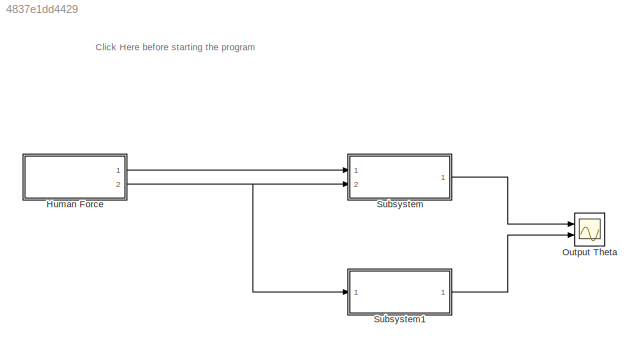
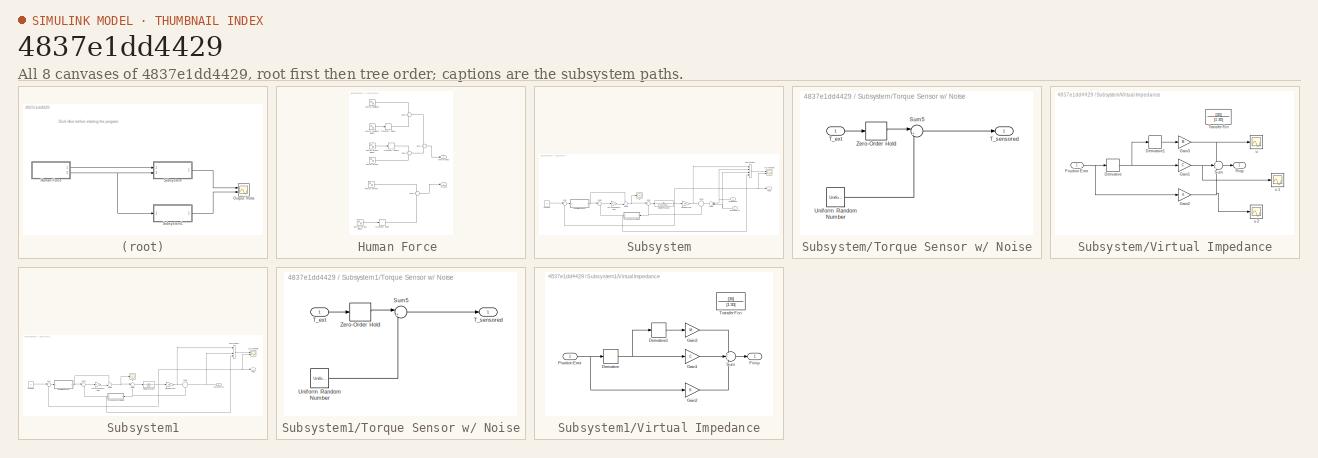
[diagram: thumbnail index - all 8 canvases of the model, root first then tree order]
MODEL slx_4837e1dd4429
KIND model
CONFIG AbsTol = auto
CONFIG EnableMultiTasking = on
CONFIG FixedStep = auto
CONFIG MaxStep = auto
CONFIG MinStep = auto
CONFIG RelTol = 1e-3
CONFIG SampleTimeConstraint = Unconstrained
CONFIG Solver = VariableStepAuto
CONFIG SolverName = VariableStepAuto
CONFIG StartTime = 0.0
CONFIG StopTime = 30
BLOCK [SubSystem] Human Force 
  Ports = [0, 2]
  RequestExecContextInheritance = off
  Variant = off
BLOCK [Outport] Human Force /Human Body
  IconDisplay = Port number
BLOCK [Sin] Human Force /Human Gravity
  Amplitude = 2
  Frequency = 2*pi*0.13
  Phase = -30*pi/180
  Ports = [0, 1]
BLOCK [Sin] Human Force /Human Gravity Reject
  Amplitude = -2
  Frequency = 2*pi*0.13
  Phase = -30*pi/180
  Ports = [0, 1]
BLOCK [Sin] Human Force /Human Nonlinear
  Amplitude = 2.1
  Frequency = 2*pi*1.2
  Ports = [0, 1]
BLOCK [Sin] Human Force /Human Nonlinear Reject
  Amplitude = -2.1
  Frequency = 2*pi*1.2
  Ports = [0, 1]
BLOCK [Sin] Human Force /Human Torque
  Amplitude = 10
  Frequency = 2*JJ*pi
  Ports = [0, 1]
BLOCK [Sin] Human Force /Human Torque Reject
  Amplitude = -10
  Frequency = JJ*2*pi
  Ports = [0, 1]
BLOCK [Outport] Human Force /Muscle
  IconDisplay = Port number
  Port = 2
BLOCK [Sum] Human Force /Sum1
  IconShape = round
  InputSameDT = off
  OutDataTypeStr = Inherit: Inherit via internal rule
  Ports = [2, 1]
  SaturateOnIntegerOverflow = off
BLOCK [Sum] Human Force /Sum2
  IconShape = round
  InputSameDT = off
  OutDataTypeStr = Inherit: Inherit via internal rule
  Ports = [2, 1]
  SaturateOnIntegerOverflow = off
BLOCK [Sum] Human Force /Sum3
  IconShape = round
  InputSameDT = off
  OutDataTypeStr = Inherit: Inherit via internal rule
  Ports = [2, 1]
  SaturateOnIntegerOverflow = off
BLOCK [Sum] Human Force /Sum7
  IconShape = round
  InputSameDT = off
  OutDataTypeStr = Inherit: Inherit via internal rule
  Ports = [2, 1]
  SaturateOnIntegerOverflow = off
BLOCK [TransportDelay] Human Force /Transport Delay
  DelayTime = 3*1/JJ
  Ports = [1, 1]
BLOCK [TransportDelay] Human Force /Transport Delay1
  DelayTime = 19*1/1.2
  Ports = [1, 1]
BLOCK [TransportDelay] Human Force /Transport Delay2
  DelayTime = 12*1/0.13
  Ports = [1, 1]
BLOCK [Scope] Output Theta
  NumInputPorts = 2
  Ports = [2]
  ScopeSpecificationString = Simulink.scopes.TimeScopeBlockCfg('CurrentConfiguration', extmgr.ConfigurationSet(extmgr.Configuration('Core','General UI',true,'FigureColor',[1 1 1]),extmgr.Configuration('Core','Source UI',true),extmgr.Configuration('Sources','WiredSimulink',true,'SampleTime','dt'),extmgr.Configuration('Visuals','Time Domain',true,'SerializedDisplays',{struct('MinYLimReal','-0.14938','MaxYLimReal','0.1468','YLab...<+1684ch>
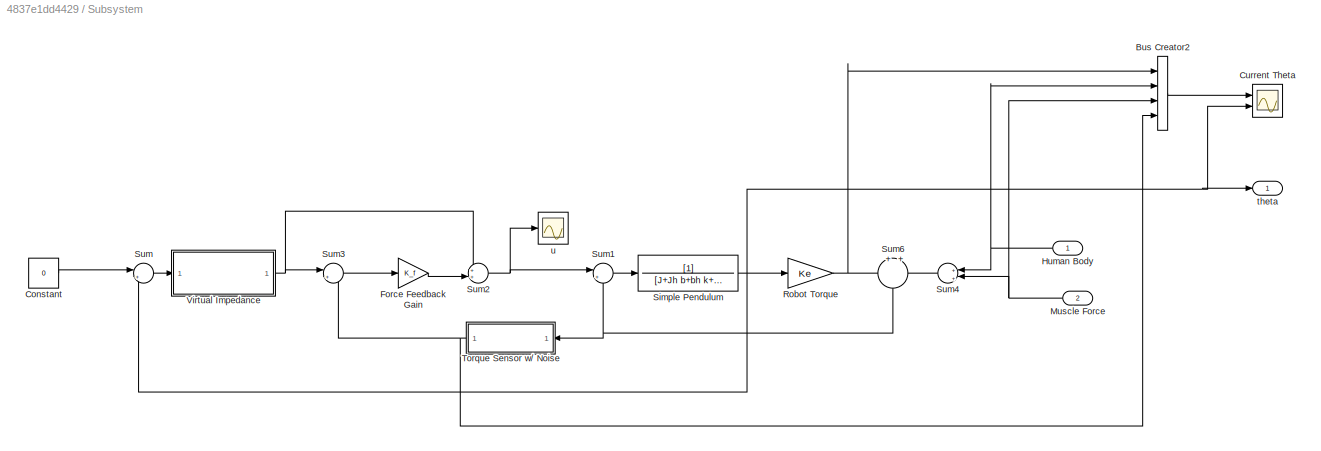
BLOCK [SubSystem] Subsystem
  Ports = [2, 1]
  RequestExecContextInheritance = off
  Variant = off
BLOCK [BusCreator] Subsystem/Bus Creator2
  DisplayOption = bar
  InheritFromInputs = on
  Inputs = 4
  Ports = [4, 1]
BLOCK [Constant] Subsystem/Constant
  SampleTime = dt
  Value = 0
BLOCK [Scope] Subsystem/Current Theta
  NumInputPorts = 2
  Ports = [2]
  ScopeSpecificationString = Simulink.scopes.TimeScopeBlockCfg('CurrentConfiguration', extmgr.ConfigurationSet(extmgr.Configuration('Core','General UI',true,'FigureColor',[1 1 1]),extmgr.Configuration('Core','Source UI',true),extmgr.Configuration('Sources','WiredSimulink',true,'SampleTime','dt','DataLoggingVariableName','ScopeData3'),extmgr.Configuration('Visuals','Time Domain',true,'SerializedDisplays',{struct('MinYLimReal',...<+2785ch>
BLOCK [Gain] Subsystem/Force Feedback Gain
  Gain = K_f
  OutDataTypeStr = Inherit: Inherit via internal rule
  ParamDataTypeStr = Inherit: Inherit via internal rule
  SaturateOnIntegerOverflow = off
BLOCK [Inport] Subsystem/Human Body
  IconDisplay = Port number
BLOCK [Inport] Subsystem/Muscle Force
  IconDisplay = Port number
  Port = 2
BLOCK [Gain] Subsystem/Robot Torque
  Gain = Ke
  OutDataTypeStr = Inherit: Inherit via internal rule
  ParamDataTypeStr = Inherit: Inherit via internal rule
  SaturateOnIntegerOverflow = off
BLOCK [TransferFcn] Subsystem/Simple Pendulum
  ContinuousStateAttributes = 'Single_Pendulum'
  Denominator = [J+Jh b+bh k+kh]
BLOCK [Sum] Subsystem/Sum
  IconShape = round
  InputSameDT = off
  Inputs = |+-
  OutDataTypeStr = Inherit: Inherit via internal rule
  Ports = [2, 1]
  SaturateOnIntegerOverflow = off
BLOCK [Sum] Subsystem/Sum1
  IconShape = round
  InputSameDT = off
  Inputs = |++
  OutDataTypeStr = Inherit: Inherit via internal rule
  Ports = [2, 1]
  SaturateOnIntegerOverflow = off
BLOCK [Sum] Subsystem/Sum2
  IconShape = round
  InputSameDT = off
  Inputs = ++|
  OutDataTypeStr = Inherit: Inherit via internal rule
  Ports = [2, 1]
  SaturateOnIntegerOverflow = off
BLOCK [Sum] Subsystem/Sum3
  IconShape = round
  InputSameDT = off
  Inputs = |++
  OutDataTypeStr = Inherit: Inherit via internal rule
  Ports = [2, 1]
  SaturateOnIntegerOverflow = off
BLOCK [Sum] Subsystem/Sum4
  IconShape = round
  InputSameDT = off
  Inputs = +|+
  OutDataTypeStr = Inherit: Inherit via internal rule
  Ports = [2, 1]
  SaturateOnIntegerOverflow = off
BLOCK [Sum] Subsystem/Sum6
  IconShape = round
  InputSameDT = off
  Inputs = +|+
  OutDataTypeStr = Inherit: Inherit via internal rule
  Ports = [2, 1]
  SaturateOnIntegerOverflow = off
BLOCK [SubSystem] Subsystem/Torque Sensor w// Noise
  Ports = [1, 1]
  RequestExecContextInheritance = off
  Variant = off
BLOCK [Sum] Subsystem/Torque Sensor w// Noise/Sum5
  IconShape = round
  InputSameDT = off
  Inputs = |++
  OutDataTypeStr = Inherit: Inherit via internal rule
  Ports = [2, 1]
  SaturateOnIntegerOverflow = off
BLOCK [Inport] Subsystem/Torque Sensor w// Noise/T_ext
  IconDisplay = Port number
BLOCK [Outport] Subsystem/Torque Sensor w// Noise/T_sensored
  IconDisplay = Port number
BLOCK [UniformRandomNumber] Subsystem/Torque Sensor w// Noise/Uniform Random Number
  Maximum = 0.5
  Minimum = -0.5
  SampleTime = 0.005
BLOCK [ZeroOrderHold] Subsystem/Torque Sensor w// Noise/Zero-Order Hold
  SampleTime = dt
BLOCK [SubSystem] Subsystem/Virtual Impedance
  Ports = [1, 1]
  RequestExecContextInheritance = off
  Variant = off
BLOCK [Derivative] Subsystem/Virtual Impedance/Derivative
BLOCK [Derivative] Subsystem/Virtual Impedance/Derivative1
BLOCK [Outport] Subsystem/Virtual Impedance/Fimp
  IconDisplay = Port number
BLOCK [Gain] Subsystem/Virtual Impedance/Gain1
  Gain = C
  OutDataTypeStr = Inherit: Inherit via internal rule
  ParamDataTypeStr = Inherit: Inherit via internal rule
  SaturateOnIntegerOverflow = off
BLOCK [Gain] Subsystem/Virtual Impedance/Gain2
  Gain = K
  OutDataTypeStr = Inherit: Inherit via internal rule
  ParamDataTypeStr = Inherit: Inherit via internal rule
  SaturateOnIntegerOverflow = off
BLOCK [Gain] Subsystem/Virtual Impedance/Gain3
  Gain = M
  OutDataTypeStr = Inherit: Inherit via internal rule
  ParamDataTypeStr = Inherit: Inherit via internal rule
  SaturateOnIntegerOverflow = off
BLOCK [Inport] Subsystem/Virtual Impedance/Position Error
  IconDisplay = Port number
BLOCK [Sum] Subsystem/Virtual Impedance/Sum
  IconShape = round
  InputSameDT = off
  Inputs = +++
  OutDataTypeStr = Inherit: Inherit via internal rule
  Ports = [3, 1]
  SaturateOnIntegerOverflow = off
BLOCK [TransferFcn] Subsystem/Virtual Impedance/Transfer Fcn
  Denominator = [1 30]
  Numerator = [30]
BLOCK [Scope] Subsystem/Virtual Impedance/u 
  NumInputPorts = 1
  Ports = [1]
  ScopeSpecificationString = Simulink.scopes.TimeScopeBlockCfg('CurrentConfiguration', extmgr.ConfigurationSet(extmgr.Configuration('Core','General UI',true,'FigureColor',[1 1 1]),extmgr.Configuration('Core','Source UI',true),extmgr.Configuration('Sources','WiredSimulink',true,'DataLoggingVariableName','ScopeData1'),extmgr.Configuration('Visuals','Time Domain',true,'SerializedDisplays',{struct('MinYLimReal','-1.00000','MaxYLi...<+1511ch>
BLOCK [Scope] Subsystem/Virtual Impedance/u 1
  NumInputPorts = 1
  Ports = [1]
  ScopeSpecificationString = Simulink.scopes.TimeScopeBlockCfg('CurrentConfiguration', extmgr.ConfigurationSet(extmgr.Configuration('Core','General UI',true,'FigureColor',[1 1 1]),extmgr.Configuration('Core','Source UI',true),extmgr.Configuration('Sources','WiredSimulink',true,'DataLoggingVariableName','ScopeData4'),extmgr.Configuration('Visuals','Time Domain',true,'SerializedDisplays',{struct('MinYLimReal','-6.29917','MaxYLi...<+1511ch>
BLOCK [Scope] Subsystem/Virtual Impedance/u 2
  NumInputPorts = 1
  Ports = [1]
  ScopeSpecificationString = Simulink.scopes.TimeScopeBlockCfg('CurrentConfiguration', extmgr.ConfigurationSet(extmgr.Configuration('Core','General UI',true,'FigureColor',[1 1 1]),extmgr.Configuration('Core','Source UI',true),extmgr.Configuration('Sources','WiredSimulink',true,'DataLoggingVariableName','ScopeData5'),extmgr.Configuration('Visuals','Time Domain',true,'SerializedDisplays',{struct('MinYLimReal','-14.44247','MaxYL...<+1517ch>
BLOCK [Outport] Subsystem/theta
  IconDisplay = Port number
BLOCK [Scope] Subsystem/u 
  NumInputPorts = 1
  Ports = [1]
  ScopeSpecificationString = Simulink.scopes.TimeScopeBlockCfg('CurrentConfiguration', extmgr.ConfigurationSet(extmgr.Configuration('Core','General UI',true,'FigureColor',[1 1 1]),extmgr.Configuration('Core','Source UI',true),extmgr.Configuration('Sources','WiredSimulink',true,'DataLoggingVariableName','ScopeData2'),extmgr.Configuration('Visuals','Time Domain',true,'SerializedDisplays',{struct('MinYLimReal','-35.46098','MaxYL...<+1610ch>
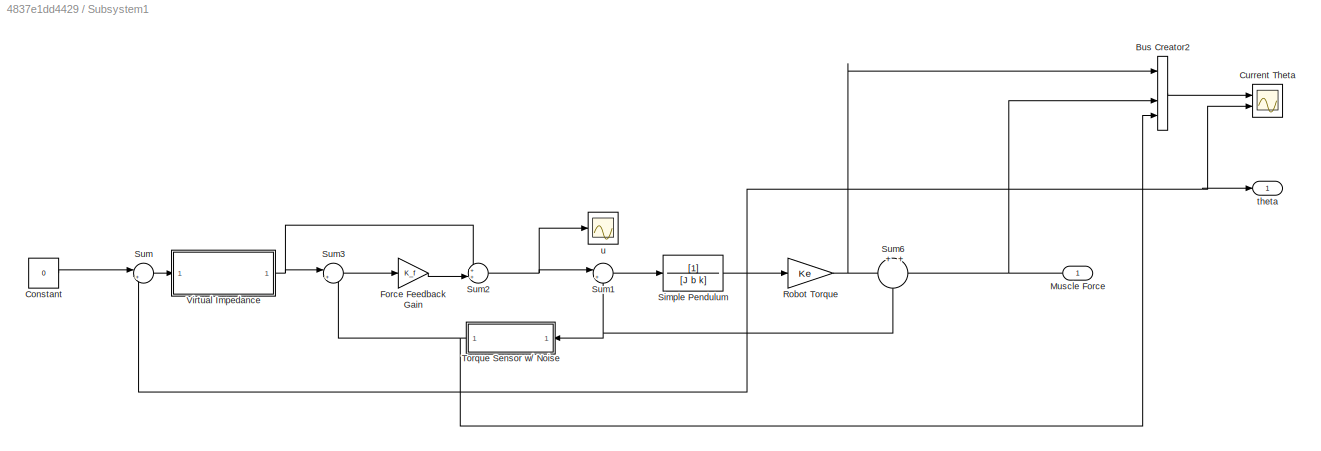
BLOCK [SubSystem] Subsystem1
  Ports = [1, 1]
  RequestExecContextInheritance = off
  Variant = off
BLOCK [BusCreator] Subsystem1/Bus Creator2
  DisplayOption = bar
  InheritFromInputs = on
  Inputs = 4
  Ports = [4, 1]
BLOCK [Constant] Subsystem1/Constant
  SampleTime = dt
  Value = 0
BLOCK [Scope] Subsystem1/Current Theta
  NumInputPorts = 2
  Ports = [2]
  ScopeSpecificationString = Simulink.scopes.TimeScopeBlockCfg('CurrentConfiguration', extmgr.ConfigurationSet(extmgr.Configuration('Core','General UI',true,'FigureColor',[1 1 1]),extmgr.Configuration('Core','Source UI',true),extmgr.Configuration('Sources','WiredSimulink',true,'SampleTime','dt','DataLoggingVariableName','ScopeData3'),extmgr.Configuration('Visuals','Time Domain',true,'SerializedDisplays',{struct('MinYLimReal',...<+2782ch>
BLOCK [Gain] Subsystem1/Force Feedback Gain
  Gain = K_f
  OutDataTypeStr = Inherit: Inherit via internal rule
  ParamDataTypeStr = Inherit: Inherit via internal rule
  SaturateOnIntegerOverflow = off
BLOCK [Inport] Subsystem1/Muscle Force
  IconDisplay = Port number
BLOCK [Gain] Subsystem1/Robot Torque
  Gain = Ke
  OutDataTypeStr = Inherit: Inherit via internal rule
  ParamDataTypeStr = Inherit: Inherit via internal rule
  SaturateOnIntegerOverflow = off
BLOCK [TransferFcn] Subsystem1/Simple Pendulum
  ContinuousStateAttributes = 'Single_Pendulum'
  Denominator = [J b k]
BLOCK [Sum] Subsystem1/Sum
  IconShape = round
  InputSameDT = off
  Inputs = |+-
  OutDataTypeStr = Inherit: Inherit via internal rule
  Ports = [2, 1]
  SaturateOnIntegerOverflow = off
BLOCK [Sum] Subsystem1/Sum1
  IconShape = round
  InputSameDT = off
  Inputs = |++
  OutDataTypeStr = Inherit: Inherit via internal rule
  Ports = [2, 1]
  SaturateOnIntegerOverflow = off
BLOCK [Sum] Subsystem1/Sum2
  IconShape = round
  InputSameDT = off
  Inputs = ++|
  OutDataTypeStr = Inherit: Inherit via internal rule
  Ports = [2, 1]
  SaturateOnIntegerOverflow = off
BLOCK [Sum] Subsystem1/Sum3
  IconShape = round
  InputSameDT = off
  Inputs = |++
  OutDataTypeStr = Inherit: Inherit via internal rule
  Ports = [2, 1]
  SaturateOnIntegerOverflow = off
BLOCK [Sum] Subsystem1/Sum6
  IconShape = round
  InputSameDT = off
  Inputs = +|+
  OutDataTypeStr = Inherit: Inherit via internal rule
  Ports = [2, 1]
  SaturateOnIntegerOverflow = off
BLOCK [SubSystem] Subsystem1/Torque Sensor w// Noise
  Ports = [1, 1]
  RequestExecContextInheritance = off
  Variant = off
BLOCK [Sum] Subsystem1/Torque Sensor w// Noise/Sum5
  IconShape = round
  InputSameDT = off
  Inputs = |++
  OutDataTypeStr = Inherit: Inherit via internal rule
  Ports = [2, 1]
  SaturateOnIntegerOverflow = off
BLOCK [Inport] Subsystem1/Torque Sensor w// Noise/T_ext
  IconDisplay = Port number
BLOCK [Outport] Subsystem1/Torque Sensor w// Noise/T_sensored
  IconDisplay = Port number
BLOCK [UniformRandomNumber] Subsystem1/Torque Sensor w// Noise/Uniform Random Number
  Maximum = 0.5
  Minimum = -0.5
  SampleTime = 0.005
BLOCK [ZeroOrderHold] Subsystem1/Torque Sensor w// Noise/Zero-Order Hold
  SampleTime = dt
BLOCK [SubSystem] Subsystem1/Virtual Impedance
  Ports = [1, 1]
  RequestExecContextInheritance = off
  Variant = off
BLOCK [Derivative] Subsystem1/Virtual Impedance/Derivative
BLOCK [Derivative] Subsystem1/Virtual Impedance/Derivative1
BLOCK [Outport] Subsystem1/Virtual Impedance/Fimp
  IconDisplay = Port number
BLOCK [Gain] Subsystem1/Virtual Impedance/Gain1
  Gain = C
  OutDataTypeStr = Inherit: Inherit via internal rule
  ParamDataTypeStr = Inherit: Inherit via internal rule
  SaturateOnIntegerOverflow = off
BLOCK [Gain] Subsystem1/Virtual Impedance/Gain2
  Gain = K
  OutDataTypeStr = Inherit: Inherit via internal rule
  ParamDataTypeStr = Inherit: Inherit via internal rule
  SaturateOnIntegerOverflow = off
BLOCK [Gain] Subsystem1/Virtual Impedance/Gain3
  Gain = M
  OutDataTypeStr = Inherit: Inherit via internal rule
  ParamDataTypeStr = Inherit: Inherit via internal rule
  SaturateOnIntegerOverflow = off
BLOCK [Inport] Subsystem1/Virtual Impedance/Position Error
  IconDisplay = Port number
BLOCK [Sum] Subsystem1/Virtual Impedance/Sum
  IconShape = round
  InputSameDT = off
  Inputs = +++
  OutDataTypeStr = Inherit: Inherit via internal rule
  Ports = [3, 1]
  SaturateOnIntegerOverflow = off
BLOCK [TransferFcn] Subsystem1/Virtual Impedance/Transfer Fcn
  Denominator = [1 30]
  Numerator = [30]
BLOCK [Outport] Subsystem1/theta
  IconDisplay = Port number
BLOCK [Scope] Subsystem1/u 
  NumInputPorts = 1
  Ports = [1]
  ScopeSpecificationString = Simulink.scopes.TimeScopeBlockCfg('CurrentConfiguration', extmgr.ConfigurationSet(extmgr.Configuration('Core','General UI',true,'FigureColor',[1 1 1]),extmgr.Configuration('Core','Source UI',true),extmgr.Configuration('Sources','WiredSimulink',true,'DataLoggingVariableName','ScopeData2'),extmgr.Configuration('Visuals','Time Domain',true,'SerializedDisplays',{struct('MinYLimReal','-22.34692','MaxYL...<+1609ch>
ANNOTATION (root): Click Here before starting the program
LINE Human Force /Human Gravity Reject:1 -> Human Force /Transport Delay2:1
LINE Human Force /Human Gravity:1 -> Human Force /Sum3:2
LINE Human Force /Human Nonlinear Reject:1 -> Human Force /Transport Delay1:1
LINE Human Force /Human Nonlinear:1 -> Human Force /Sum2:1
LINE Human Force /Human Torque Reject:1 -> Human Force /Transport Delay:1
LINE Human Force /Human Torque:1 -> Human Force /Sum1:1
LINE Human Force /Sum1:1 -> Human Force /Muscle:1
LINE Human Force /Sum2:1 -> Human Force /Sum7:1
LINE Human Force /Sum3:1 -> Human Force /Sum7:2
LINE Human Force /Sum7:1 -> Human Force /Human Body:1
LINE Human Force /Transport Delay1:1 -> Human Force /Sum2:2
LINE Human Force /Transport Delay2:1 -> Human Force /Sum3:1
LINE Human Force /Transport Delay:1 -> Human Force /Sum1:2
LINE Human Force :1 -> Subsystem:1
NET Human Force :2 -> Subsystem1:1, Subsystem:2
LINE Subsystem/Bus Creator2:1 -> Subsystem/Current Theta:1
LINE Subsystem/Constant:1 -> Subsystem/Sum:1
LINE Subsystem/Force Feedback Gain:1 -> Subsystem/Sum2:2
NET Subsystem/Human Body:1 -> Subsystem/Bus Creator2:2, Subsystem/Sum4:1
NET Subsystem/Muscle Force:1 -> Subsystem/Bus Creator2:3, Subsystem/Sum4:2
NET Subsystem/Robot Torque:1 -> Subsystem/Bus Creator2:1, Subsystem/Sum6:1
NET Subsystem/Simple Pendulum:1 -> Subsystem/Current Theta:2, Subsystem/Robot Torque:1, Subsystem/Sum:2, Subsystem/theta:1
LINE Subsystem/Sum1:1 -> Subsystem/Simple Pendulum:1
NET Subsystem/Sum2:1 -> Subsystem/Sum1:1, Subsystem/u :1
LINE Subsystem/Sum3:1 -> Subsystem/Force Feedback Gain:1
LINE Subsystem/Sum4:1 -> Subsystem/Sum6:2
NET Subsystem/Sum6:1 -> Subsystem/Sum1:2, Subsystem/Torque Sensor w// Noise:1
LINE Subsystem/Sum:1 -> Subsystem/Virtual Impedance:1
LINE Subsystem/Torque Sensor w// Noise/Sum5:1 -> Subsystem/Torque Sensor w// Noise/T_sensored:1
LINE Subsystem/Torque Sensor w// Noise/T_ext:1 -> Subsystem/Torque Sensor w// Noise/Zero-Order Hold:1
LINE Subsystem/Torque Sensor w// Noise/Uniform Random Number:1 -> Subsystem/Torque Sensor w// Noise/Sum5:2
LINE Subsystem/Torque Sensor w// Noise/Zero-Order Hold:1 -> Subsystem/Torque Sensor w// Noise/Sum5:1
NET Subsystem/Torque Sensor w// Noise:1 -> Subsystem/Bus Creator2:4, Subsystem/Sum3:2
LINE Subsystem/Virtual Impedance/Derivative1:1 -> Subsystem/Virtual Impedance/Gain3:1
NET Subsystem/Virtual Impedance/Derivative:1 -> Subsystem/Virtual Impedance/Derivative1:1, Subsystem/Virtual Impedance/Gain1:1
NET Subsystem/Virtual Impedance/Gain1:1 -> Subsystem/Virtual Impedance/Sum:2, Subsystem/Virtual Impedance/u 1:1
NET Subsystem/Virtual Impedance/Gain2:1 -> Subsystem/Virtual Impedance/Sum:3, Subsystem/Virtual Impedance/u 2:1
NET Subsystem/Virtual Impedance/Gain3:1 -> Subsystem/Virtual Impedance/Sum:1, Subsystem/Virtual Impedance/u :1
NET Subsystem/Virtual Impedance/Position Error:1 -> Subsystem/Virtual Impedance/Derivative:1, Subsystem/Virtual Impedance/Gain2:1
LINE Subsystem/Virtual Impedance/Sum:1 -> Subsystem/Virtual Impedance/Fimp:1
NET Subsystem/Virtual Impedance:1 -> Subsystem/Sum2:1, Subsystem/Sum3:1
LINE Subsystem1/Bus Creator2:1 -> Subsystem1/Current Theta:1
LINE Subsystem1/Constant:1 -> Subsystem1/Sum:1
LINE Subsystem1/Force Feedback Gain:1 -> Subsystem1/Sum2:2
NET Subsystem1/Muscle Force:1 -> Subsystem1/Bus Creator2:3, Subsystem1/Sum6:2
NET Subsystem1/Robot Torque:1 -> Subsystem1/Bus Creator2:1, Subsystem1/Sum6:1
NET Subsystem1/Simple Pendulum:1 -> Subsystem1/Current Theta:2, Subsystem1/Robot Torque:1, Subsystem1/Sum:2, Subsystem1/theta:1
LINE Subsystem1/Sum1:1 -> Subsystem1/Simple Pendulum:1
NET Subsystem1/Sum2:1 -> Subsystem1/Sum1:1, Subsystem1/u :1
LINE Subsystem1/Sum3:1 -> Subsystem1/Force Feedback Gain:1
NET Subsystem1/Sum6:1 -> Subsystem1/Sum1:2, Subsystem1/Torque Sensor w// Noise:1
LINE Subsystem1/Sum:1 -> Subsystem1/Virtual Impedance:1
LINE Subsystem1/Torque Sensor w// Noise/Sum5:1 -> Subsystem1/Torque Sensor w// Noise/T_sensored:1
LINE Subsystem1/Torque Sensor w// Noise/T_ext:1 -> Subsystem1/Torque Sensor w// Noise/Zero-Order Hold:1
LINE Subsystem1/Torque Sensor w// Noise/Uniform Random Number:1 -> Subsystem1/Torque Sensor w// Noise/Sum5:2
LINE Subsystem1/Torque Sensor w// Noise/Zero-Order Hold:1 -> Subsystem1/Torque Sensor w// Noise/Sum5:1
NET Subsystem1/Torque Sensor w// Noise:1 -> Subsystem1/Bus Creator2:4, Subsystem1/Sum3:2
LINE Subsystem1/Virtual Impedance/Derivative1:1 -> Subsystem1/Virtual Impedance/Gain3:1
NET Subsystem1/Virtual Impedance/Derivative:1 -> Subsystem1/Virtual Impedance/Derivative1:1, Subsystem1/Virtual Impedance/Gain1:1
LINE Subsystem1/Virtual Impedance/Gain1:1 -> Subsystem1/Virtual Impedance/Sum:2
LINE Subsystem1/Virtual Impedance/Gain2:1 -> Subsystem1/Virtual Impedance/Sum:3
LINE Subsystem1/Virtual Impedance/Gain3:1 -> Subsystem1/Virtual Impedance/Sum:1
NET Subsystem1/Virtual Impedance/Position Error:1 -> Subsystem1/Virtual Impedance/Derivative:1, Subsystem1/Virtual Impedance/Gain2:1
LINE Subsystem1/Virtual Impedance/Sum:1 -> Subsystem1/Virtual Impedance/Fimp:1
NET Subsystem1/Virtual Impedance:1 -> Subsystem1/Sum2:1, Subsystem1/Sum3:1
LINE Subsystem1:1 -> Output Theta:2
LINE Subsystem:1 -> Output Theta:1
note: NET lines group one-source signal fan-out (src -> all destinations, sorted); 1:1 wires keep LINE
